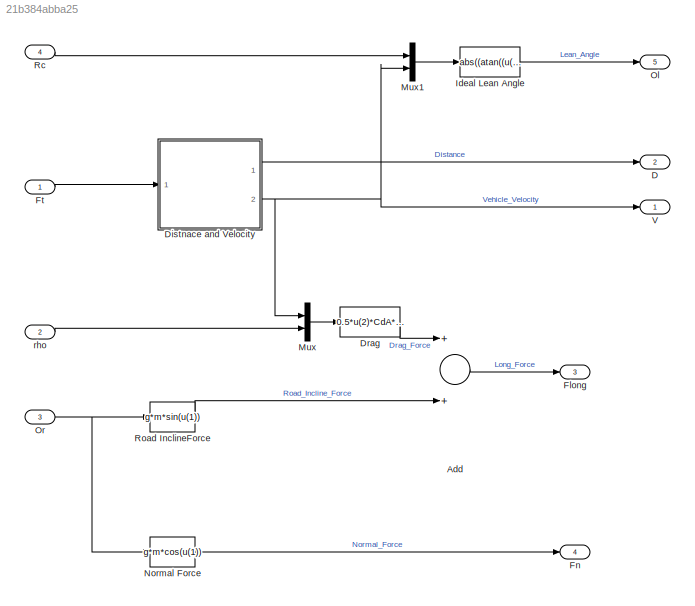
MODEL slx_21b384abba25
KIND model
WORKSPACE source: external: MAT-File  (data not in archive)
BLOCK [Sum] Add
  InputSameDT = off
  OutDataTypeStr = Inherit: Inherit via internal rule
  Ports = [2, 1]
  SaturateOnIntegerOverflow = off
BLOCK [Outport] D
  IconDisplay = Port number
  Port = 2
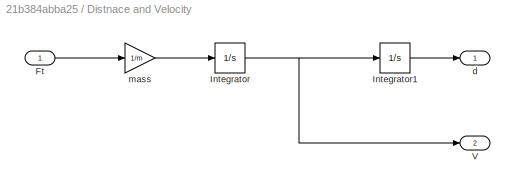
BLOCK [SubSystem] Distnace and Velocity
  Ports = [1, 2]
  RequestExecContextInheritance = off
BLOCK [Inport] Distnace and Velocity/Ft
  IconDisplay = Port number
BLOCK [Integrator] Distnace and Velocity/Integrator
  InitialCondition = v0
  Ports = [1, 1]
BLOCK [Integrator] Distnace and Velocity/Integrator1
  InitialCondition = d0
  Ports = [1, 1]
BLOCK [Outport] Distnace and Velocity/V
  IconDisplay = Port number
  Port = 2
BLOCK [Outport] Distnace and Velocity/d
  IconDisplay = Port number
BLOCK [Gain] Distnace and Velocity/mass
  Gain = 1/m
  OutDataTypeStr = Inherit: Inherit via internal rule
  ParamDataTypeStr = Inherit: Inherit via internal rule
  SaturateOnIntegerOverflow = off
BLOCK [Fcn] Drag
  Expr = 0.5*u(2)*CdA*u(1)^2
BLOCK [Outport] Flong
  IconDisplay = Port number
  Port = 3
BLOCK [Outport] Fn
  IconDisplay = Port number
  Port = 4
BLOCK [Inport] Ft
  IconDisplay = Port number
BLOCK [Fcn] Ideal Lean Angle
  Expr = abs((atan((u(2)^2)/ (g*u(1))))*(180/pi))
BLOCK [Mux] Mux
  DisplayOption = bar
  Inputs = 2
  Ports = [2, 1]
BLOCK [Mux] Mux1
  DisplayOption = bar
  Inputs = 2
  Ports = [2, 1]
BLOCK [Fcn] Normal Force
  Expr = g*m*cos(u(1))
BLOCK [Outport] Ol
  IconDisplay = Port number
  Port = 5
BLOCK [Inport] Or
  IconDisplay = Port number
  Port = 3
BLOCK [Inport] Rc
  IconDisplay = Port number
  Port = 4
BLOCK [Fcn] Road InclineForce
  Expr = g*m*sin(u(1))
BLOCK [Outport] V
  IconDisplay = Port number
BLOCK [Inport] rho
  IconDisplay = Port number
  Port = 2
LINE Add:1 -> Flong:1
LINE Distnace and Velocity/Ft:1 -> Distnace and Velocity/mass:1
LINE Distnace and Velocity/Integrator1:1 -> Distnace and Velocity/d:1
NET Distnace and Velocity/Integrator:1 -> Distnace and Velocity/Integrator1:1, Distnace and Velocity/V:1
LINE Distnace and Velocity/mass:1 -> Distnace and Velocity/Integrator:1
LINE Distnace and Velocity:1 -> D:1
NET Distnace and Velocity:2 -> Mux1:2, Mux:1, V:1
LINE Drag:1 -> Add:1
LINE Ft:1 -> Distnace and Velocity:1
LINE Ideal Lean Angle:1 -> Ol:1
LINE Mux1:1 -> Ideal Lean Angle:1
LINE Mux:1 -> Drag:1
LINE Normal Force:1 -> Fn:1
NET Or:1 -> Normal Force:1, Road InclineForce:1
LINE Rc:1 -> Mux1:1
LINE Road InclineForce:1 -> Add:2
LINE rho:1 -> Mux:2
note: NET lines group one-source signal fan-out (src -> all destinations, sorted); 1:1 wires keep LINE
